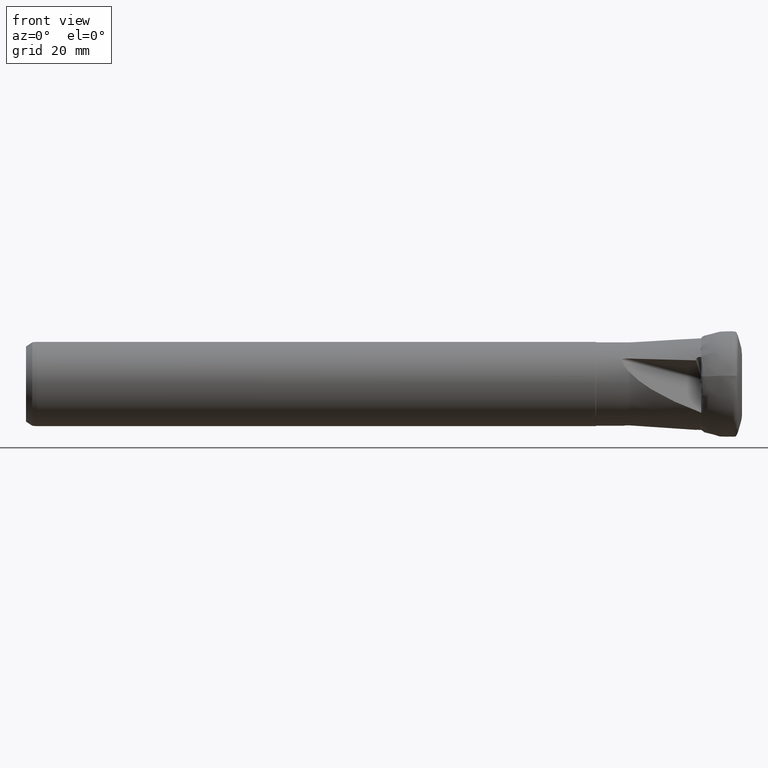
[diagram: clean part render]
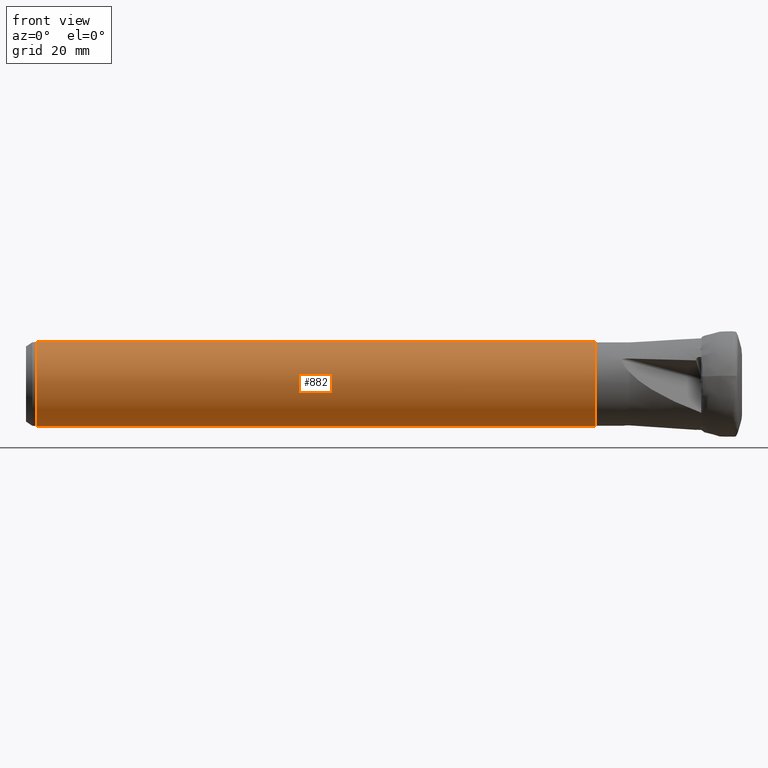
[diagram: same view with one face highlighted and labeled with its STEP entity id]
A machine part, front view. The second image highlights one B-rep face of the part: STEP entity #882.
In plain terms, the highlighted cylindrical surface (bore or boss wall) has radius 10 mm, axis along (-1, -0, -0).
Its self-contained STEP definition (entity closure, byte-faithful):
#106 = DIRECTION ( 'NONE',  ( 0.0000000000000000000, 0.0000000000000000000, 1.000000000000000000 ) ) ;
#191 = VERTEX_POINT ( 'NONE', #1554 ) ;
#532 = ORIENTED_EDGE ( 'NONE', *, *, #1734, .F. ) ;
#721 = CARTESIAN_POINT ( 'NONE',  ( -33.05000000000002600, 0.0000000000000000000, 0.0000000000000000000 ) ) ;
#882 = ADVANCED_FACE ( 'NONE', ( #3584, #1140 ), #2667, .T. ) ;
#936 = CIRCLE ( 'NONE', #3207, 10.00000000000000000 ) ;
#953 = AXIS2_PLACEMENT_3D ( 'NONE', #721, #1040, #2561 ) ;
#965 = CARTESIAN_POINT ( 'NONE',  ( -166.5499999999997800, 0.0000000000000000000, 0.0000000000000000000 ) ) ;
#1040 = DIRECTION ( 'NONE',  ( -1.000000000000000000, -0.0000000000000000000, -0.0000000000000000000 ) ) ;
#1140 = FACE_OUTER_BOUND ( 'NONE', #1913, .T. ) ;
#1270 = EDGE_LOOP ( 'NONE', ( #532 ) ) ;
#1278 = DIRECTION ( 'NONE',  ( 0.0000000000000000000, 0.0000000000000000000, -1.000000000000000000 ) ) ;
#1554 = CARTESIAN_POINT ( 'NONE',  ( -166.5499999999997800, 0.0000000000000000000, -10.00000000000000000 ) ) ;
#1669 = CIRCLE ( 'NONE', #2849, 10.00000000000000000 ) ;
#1734 = EDGE_CURVE ( 'NONE', #1795, #1795, #936, .T. ) ;
#1795 = VERTEX_POINT ( 'NONE', #3079 ) ;
#1913 = EDGE_LOOP ( 'NONE', ( #2956 ) ) ;
#1914 = DIRECTION ( 'NONE',  ( 1.000000000000000000, -0.0000000000000000000, -0.0000000000000000000 ) ) ;
#2561 = DIRECTION ( 'NONE',  ( 0.0000000000000000000, 0.0000000000000000000, 1.000000000000000000 ) ) ;
#2667 = CYLINDRICAL_SURFACE ( 'NONE', #953, 10.00000000000000000 ) ;
#2849 = AXIS2_PLACEMENT_3D ( 'NONE', #965, #3101, #1278 ) ;
#2956 = ORIENTED_EDGE ( 'NONE', *, *, #3019, .F. ) ;
#3019 = EDGE_CURVE ( 'NONE', #191, #191, #1669, .T. ) ;
#3079 = CARTESIAN_POINT ( 'NONE',  ( -33.87679491924311700, 0.0000000000000000000, 10.00000000000000000 ) ) ;
#3101 = DIRECTION ( 'NONE',  ( -1.000000000000000000, 0.0000000000000000000, 0.0000000000000000000 ) ) ;
#3207 = AXIS2_PLACEMENT_3D ( 'NONE', #3731, #1914, #106 ) ;
#3584 = FACE_OUTER_BOUND ( 'NONE', #1270, .T. ) ;
#3731 = CARTESIAN_POINT ( 'NONE',  ( -33.87679491924311700, 0.0000000000000000000, 0.0000000000000000000 ) ) ;